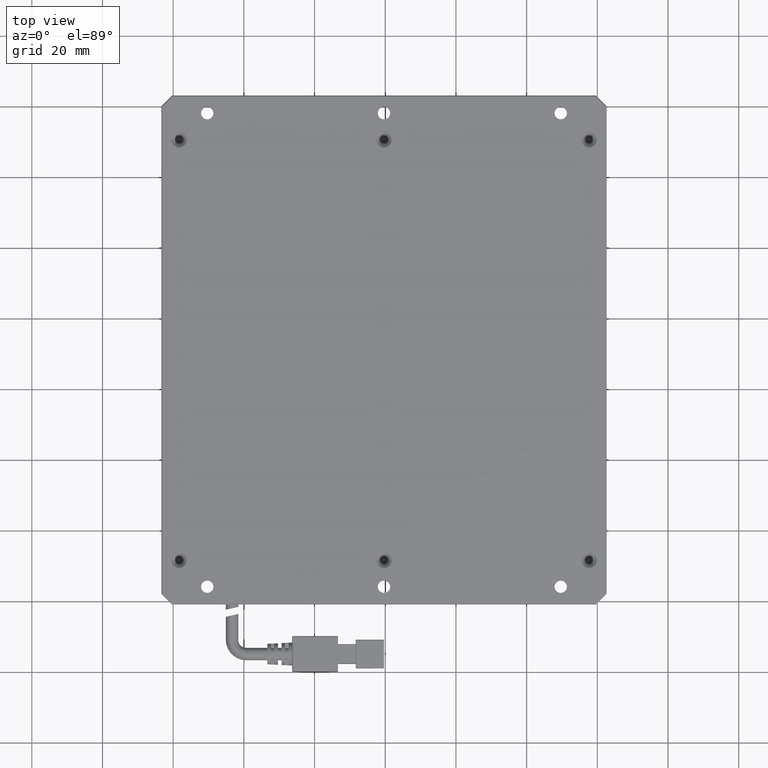
[diagram: clean part render]
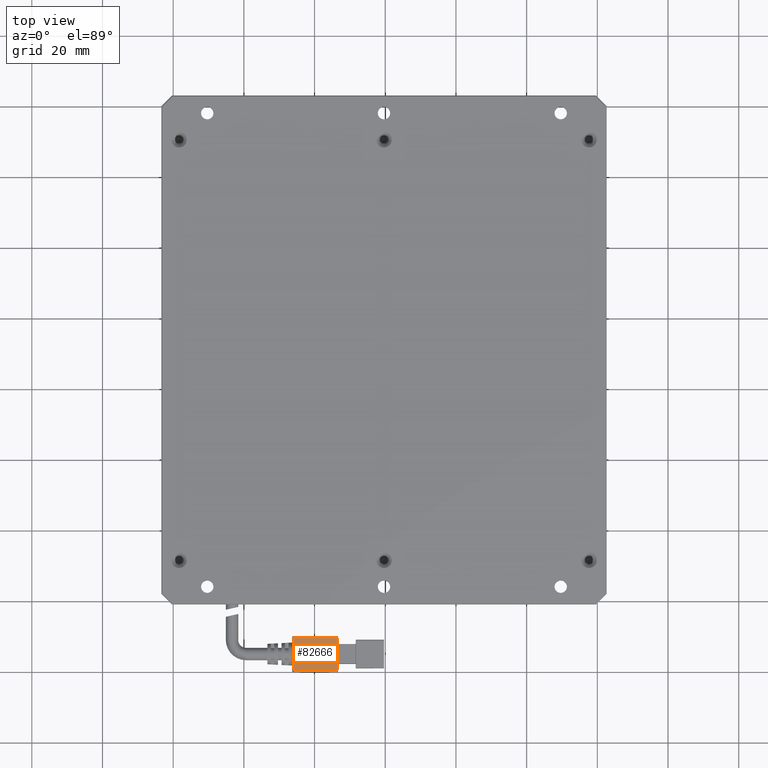
[diagram: same view with one face highlighted and labeled with its STEP entity id]
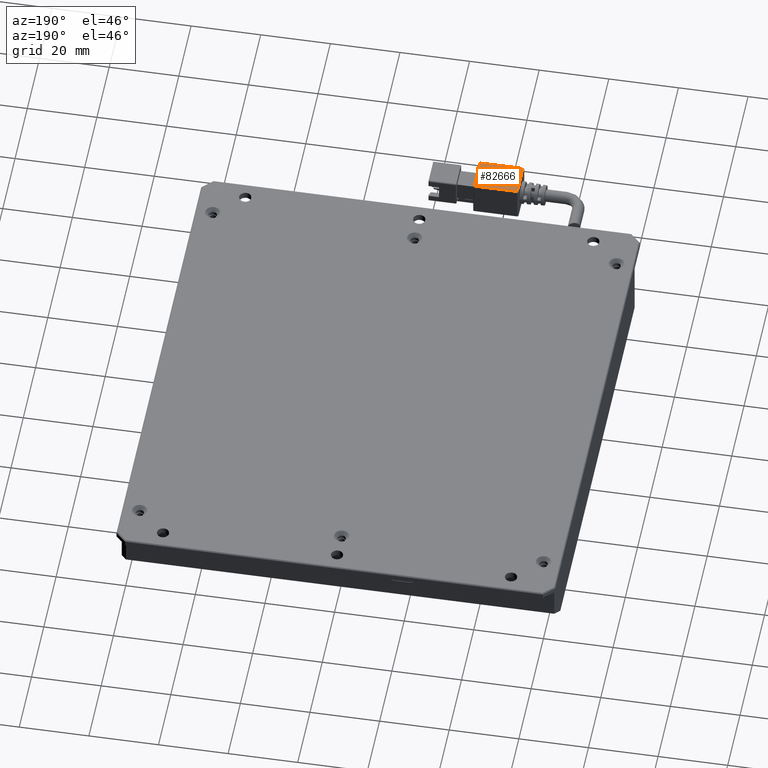
[diagram: same view with one face highlighted and labeled with its STEP entity id]
A machine part, top view. The second image highlights one B-rep face of the part: STEP entity #82666.
A second angle (auxiliary view) of the same face is appended — the face is thin or edge-on in the first view.
In plain terms, the highlighted planar face has unit normal (0, 0, -1).
Its self-contained STEP definition (entity closure, byte-faithful):
#1047 = EDGE_CURVE ( 'NONE', #16592, #42143, #98882, .T. ) ;
#2898 = CARTESIAN_POINT ( 'NONE',  ( -13.55509736540662400, -79.71034746086289100, 17.29999999998364000 ) ) ;
#4011 = AXIS2_PLACEMENT_3D ( 'NONE', #57388, #10662, #65287 ) ;
#6602 = CARTESIAN_POINT ( 'NONE',  ( -13.55509736540662400, -70.11034746086288300, 17.29999999998364000 ) ) ;
#6915 = DIRECTION ( 'NONE',  ( -6.162975822039154700E-033, -1.000000000000000000, -1.232595164407830900E-032 ) ) ;
#6995 = CARTESIAN_POINT ( 'NONE',  ( -13.55509736540662400, -70.51034746086288900, 17.29999999998364000 ) ) ;
#7826 = DIRECTION ( 'NONE',  ( -1.000000000000000000, 6.162975822039154700E-033, -5.345529420184391300E-049 ) ) ;
#8120 = VECTOR ( 'NONE', #7826, 1000.000000000000000 ) ;
#10662 = DIRECTION ( 'NONE',  ( 5.345529420184392100E-049, 1.232595164407830900E-032, -1.000000000000000000 ) ) ;
#11335 = VECTOR ( 'NONE', #89684, 1000.000000000000000 ) ;
#13507 = VECTOR ( 'NONE', #6915, 1000.000000000000000 ) ;
#16592 = VERTEX_POINT ( 'NONE', #31711 ) ;
#18158 = VECTOR ( 'NONE', #67714, 1000.000000000000000 ) ;
#23301 = ORIENTED_EDGE ( 'NONE', *, *, #92148, .F. ) ;
#24103 = EDGE_LOOP ( 'NONE', ( #71282, #43699, #67698, #23301 ) ) ;
#26067 = PLANE ( 'NONE',  #4011 ) ;
#30216 = EDGE_CURVE ( 'NONE', #72222, #16592, #71192, .T. ) ;
#31711 = CARTESIAN_POINT ( 'NONE',  ( -25.95509736540662300, -70.51034746086288900, 17.29999999998364000 ) ) ;
#31966 = VERTEX_POINT ( 'NONE', #2898 ) ;
#42143 = VERTEX_POINT ( 'NONE', #6995 ) ;
#43699 = ORIENTED_EDGE ( 'NONE', *, *, #1047, .F. ) ;
#54585 = CARTESIAN_POINT ( 'NONE',  ( -13.35509736540662100, -79.71034746086289100, 17.29999999998364000 ) ) ;
#57388 = CARTESIAN_POINT ( 'NONE',  ( -13.35509736540662100, -70.11034746086288300, 17.29999999998364000 ) ) ;
#59881 = CARTESIAN_POINT ( 'NONE',  ( -13.35509736540662100, -70.51034746086288900, 17.29999999998364000 ) ) ;
#65287 = DIRECTION ( 'NONE',  ( 6.162975822039154700E-033, 1.000000000000000000, 1.232595164407830900E-032 ) ) ;
#67698 = ORIENTED_EDGE ( 'NONE', *, *, #30216, .F. ) ;
#67714 = DIRECTION ( 'NONE',  ( 1.000000000000000000, -6.162975822039154700E-033, 5.345529420184391300E-049 ) ) ;
#67939 = LINE ( 'NONE', #54585, #8120 ) ;
#71192 = LINE ( 'NONE', #82136, #11335 ) ;
#71282 = ORIENTED_EDGE ( 'NONE', *, *, #84301, .F. ) ;
#72222 = VERTEX_POINT ( 'NONE', #100332 ) ;
#82136 = CARTESIAN_POINT ( 'NONE',  ( -25.95509736540662600, -70.11034746086288300, 17.29999999998364000 ) ) ;
#82666 = ADVANCED_FACE ( 'NONE', ( #99580 ), #26067, .F. ) ;
#84301 = EDGE_CURVE ( 'NONE', #42143, #31966, #94242, .T. ) ;
#89684 = DIRECTION ( 'NONE',  ( 6.162975822039154700E-033, 1.000000000000000000, 1.232595164407830900E-032 ) ) ;
#92148 = EDGE_CURVE ( 'NONE', #31966, #72222, #67939, .T. ) ;
#94242 = LINE ( 'NONE', #6602, #13507 ) ;
#98882 = LINE ( 'NONE', #59881, #18158 ) ;
#99580 = FACE_OUTER_BOUND ( 'NONE', #24103, .T. ) ;
#100332 = CARTESIAN_POINT ( 'NONE',  ( -25.95509736540662300, -79.71034746086289100, 17.29999999998364000 ) ) ;